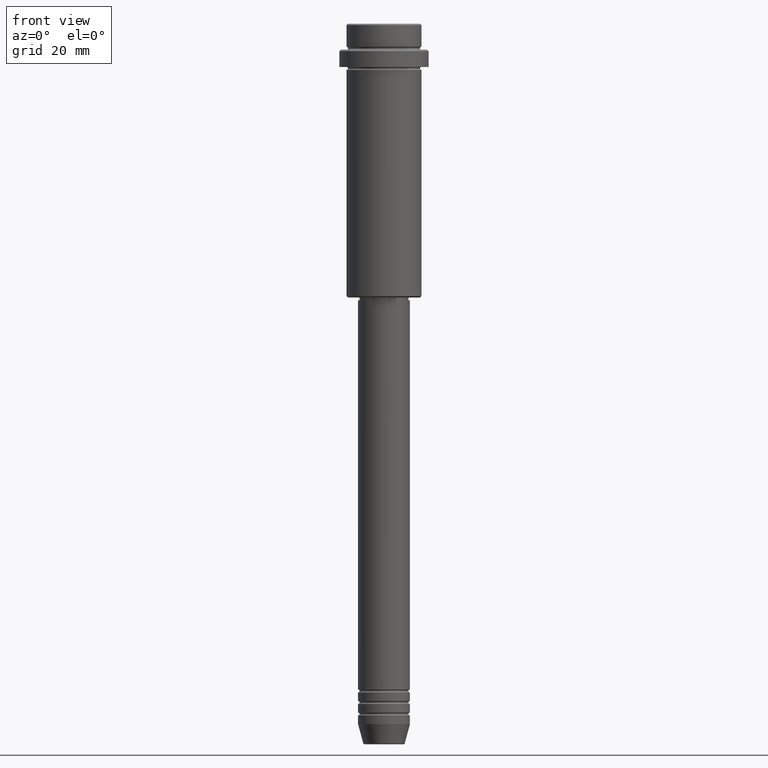
[diagram: clean part render]
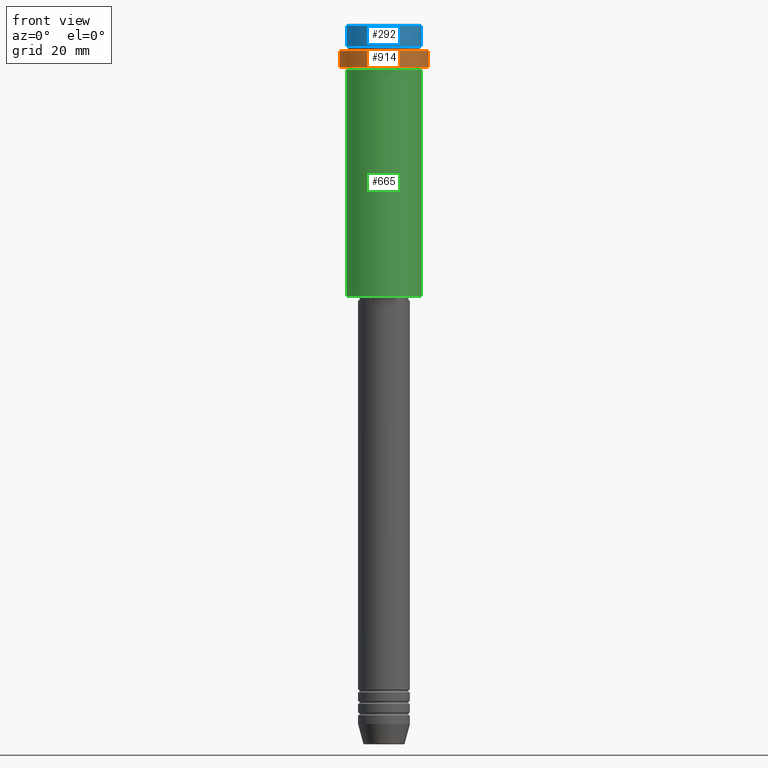
[diagram: same view with three faces highlighted in distinct colors, each labeled with its STEP entity id]
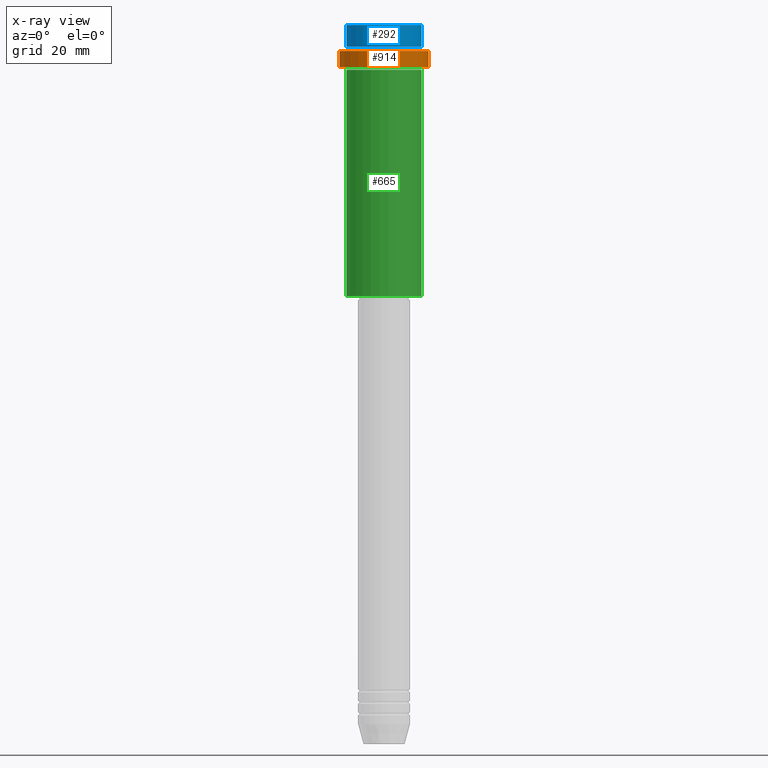
[diagram: x-ray of the same camera — body ghosted, the three highlighted faces saturated]
A machine part, front view with three faces highlighted in distinct colors.
The next image is the same camera in x-ray (body ghosted, the three faces saturated) — at least one of them is partly hidden behind the body in this view.
Their STEP definitions:

[orange] entity #914 — the highlighted cylindrical surface (partial cylindrical patch) has radius 15.5 mm, axis along (-0, -0, 1).
#8 = CIRCLE ( 'NONE', #446, 15.50000000000000000 ) ;
#42 = ORIENTED_EDGE ( 'NONE', *, *, #1090, .T. ) ;
#74 = EDGE_CURVE ( 'NONE', #997, #825, #168, .T. ) ;
#109 = DIRECTION ( 'NONE',  ( 0.000000000000000000, 0.000000000000000000, -1.000000000000000000 ) ) ;
#128 = CARTESIAN_POINT ( 'NONE',  ( 15.50000000000000000, 0.000000000000000000, -15.00000000000000178 ) ) ;
#130 = DIRECTION ( 'NONE',  ( -0.000000000000000000, -0.000000000000000000, 1.000000000000000000 ) ) ;
#168 = LINE ( 'NONE', #616, #846 ) ;
#245 = DIRECTION ( 'NONE',  ( 1.000000000000000000, 0.000000000000000000, 0.000000000000000000 ) ) ;
#308 = CIRCLE ( 'NONE', #1195, 15.50000000000000000 ) ;
#320 = DIRECTION ( 'NONE',  ( 1.000000000000000000, 0.000000000000000000, 0.000000000000000000 ) ) ;
#358 = CARTESIAN_POINT ( 'NONE',  ( 0.000000000000000000, 0.000000000000000000, -15.00000000000000178 ) ) ;
#368 = CYLINDRICAL_SURFACE ( 'NONE', #574, 15.50000000000000000 ) ;
#379 = DIRECTION ( 'NONE',  ( 1.000000000000000000, 0.000000000000000000, 0.000000000000000000 ) ) ;
#383 = EDGE_CURVE ( 'NONE', #997, #1270, #308, .T. ) ;
#446 = AXIS2_PLACEMENT_3D ( 'NONE', #991, #109, #320 ) ;
#498 = ORIENTED_EDGE ( 'NONE', *, *, #74, .F. ) ;
#548 = LINE ( 'NONE', #1086, #1237 ) ;
#574 = AXIS2_PLACEMENT_3D ( 'NONE', #680, #130, #379 ) ;
#600 = ORIENTED_EDGE ( 'NONE', *, *, #383, .T. ) ;
#616 = CARTESIAN_POINT ( 'NONE',  ( -15.50000000000000000, 1.898202538678397557E-15, 0.000000000000000000 ) ) ;
#643 = DIRECTION ( 'NONE',  ( -0.000000000000000000, -0.000000000000000000, 1.000000000000000000 ) ) ;
#680 = CARTESIAN_POINT ( 'NONE',  ( 0.000000000000000000, 0.000000000000000000, 0.000000000000000000 ) ) ;
#697 = ORIENTED_EDGE ( 'NONE', *, *, #786, .T. ) ;
#708 = FACE_OUTER_BOUND ( 'NONE', #820, .T. ) ;
#709 = DIRECTION ( 'NONE',  ( -0.000000000000000000, -0.000000000000000000, 1.000000000000000000 ) ) ;
#751 = DIRECTION ( 'NONE',  ( -0.000000000000000000, -0.000000000000000000, 1.000000000000000000 ) ) ;
#755 = VERTEX_POINT ( 'NONE', #1088 ) ;
#786 = EDGE_CURVE ( 'NONE', #755, #825, #8, .T. ) ;
#820 = EDGE_LOOP ( 'NONE', ( #498, #600, #42, #697 ) ) ;
#825 = VERTEX_POINT ( 'NONE', #1317 ) ;
#846 = VECTOR ( 'NONE', #709, 1000.000000000000000 ) ;
#914 = ADVANCED_FACE ( 'NONE', ( #708 ), #368, .T. ) ;
#991 = CARTESIAN_POINT ( 'NONE',  ( 0.000000000000000000, 0.000000000000000000, -9.499999999999957367 ) ) ;
#997 = VERTEX_POINT ( 'NONE', #1168 ) ;
#1086 = CARTESIAN_POINT ( 'NONE',  ( 15.50000000000000000, 0.000000000000000000, 0.000000000000000000 ) ) ;
#1088 = CARTESIAN_POINT ( 'NONE',  ( 15.50000000000000000, 0.000000000000000000, -9.499999999999957367 ) ) ;
#1090 = EDGE_CURVE ( 'NONE', #1270, #755, #548, .T. ) ;
#1168 = CARTESIAN_POINT ( 'NONE',  ( -15.50000000000000000, 1.898202538678397557E-15, -15.00000000000000178 ) ) ;
#1195 = AXIS2_PLACEMENT_3D ( 'NONE', #358, #643, #245 ) ;
#1237 = VECTOR ( 'NONE', #751, 1000.000000000000000 ) ;
#1270 = VERTEX_POINT ( 'NONE', #128 ) ;
#1317 = CARTESIAN_POINT ( 'NONE',  ( -15.50000000000000000, 1.898202538678397557E-15, -9.499999999999957367 ) ) ;

[blue] entity #292 — the highlighted cylindrical surface (partial cylindrical patch) has radius 13 mm, axis along (-0, -0, 1).
#7 = ORIENTED_EDGE ( 'NONE', *, *, #116, .T. ) ;
#12 = CARTESIAN_POINT ( 'NONE',  ( -12.99999999999999822, 1.592040838891558898E-15, -0.5000000000000037748 ) ) ;
#70 = CIRCLE ( 'NONE', #1057, 12.99999999999999822 ) ;
#85 = ORIENTED_EDGE ( 'NONE', *, *, #917, .T. ) ;
#95 = AXIS2_PLACEMENT_3D ( 'NONE', #1083, #316, #198 ) ;
#116 = EDGE_CURVE ( 'NONE', #1406, #733, #70, .T. ) ;
#134 = VECTOR ( 'NONE', #1129, 1000.000000000000000 ) ;
#198 = DIRECTION ( 'NONE',  ( 1.000000000000000000, 0.000000000000000000, 0.000000000000000000 ) ) ;
#230 = DIRECTION ( 'NONE',  ( -0.000000000000000000, -0.000000000000000000, 1.000000000000000000 ) ) ;
#254 = VERTEX_POINT ( 'NONE', #998 ) ;
#256 = CIRCLE ( 'NONE', #286, 12.99999999999999822 ) ;
#286 = AXIS2_PLACEMENT_3D ( 'NONE', #1334, #1141, #586 ) ;
#292 = ADVANCED_FACE ( 'NONE', ( #1188 ), #1277, .T. ) ;
#315 = ORIENTED_EDGE ( 'NONE', *, *, #815, .F. ) ;
#316 = DIRECTION ( 'NONE',  ( -0.000000000000000000, -0.000000000000000000, 1.000000000000000000 ) ) ;
#447 = EDGE_CURVE ( 'NONE', #254, #1314, #256, .T. ) ;
#586 = DIRECTION ( 'NONE',  ( 1.000000000000000000, 0.000000000000000000, 0.000000000000000000 ) ) ;
#625 = ORIENTED_EDGE ( 'NONE', *, *, #447, .T. ) ;
#648 = CARTESIAN_POINT ( 'NONE',  ( -12.99999999999999822, 1.592040838891558898E-15, 0.000000000000000000 ) ) ;
#689 = VECTOR ( 'NONE', #1204, 1000.000000000000000 ) ;
#699 = CARTESIAN_POINT ( 'NONE',  ( 12.99999999999999822, 0.000000000000000000, 0.000000000000000000 ) ) ;
#733 = VERTEX_POINT ( 'NONE', #1091 ) ;
#800 = LINE ( 'NONE', #699, #134 ) ;
#815 = EDGE_CURVE ( 'NONE', #1406, #1314, #1296, .T. ) ;
#900 = DIRECTION ( 'NONE',  ( 1.000000000000000000, 0.000000000000000000, 0.000000000000000000 ) ) ;
#917 = EDGE_CURVE ( 'NONE', #733, #254, #800, .T. ) ;
#998 = CARTESIAN_POINT ( 'NONE',  ( 12.99999999999999822, 0.000000000000000000, -0.5000000000000037748 ) ) ;
#1057 = AXIS2_PLACEMENT_3D ( 'NONE', #1326, #230, #900 ) ;
#1083 = CARTESIAN_POINT ( 'NONE',  ( 0.000000000000000000, 0.000000000000000000, 0.000000000000000000 ) ) ;
#1091 = CARTESIAN_POINT ( 'NONE',  ( 12.99999999999999822, 0.000000000000000000, -7.999999999999998224 ) ) ;
#1129 = DIRECTION ( 'NONE',  ( -0.000000000000000000, -0.000000000000000000, 1.000000000000000000 ) ) ;
#1141 = DIRECTION ( 'NONE',  ( 0.000000000000000000, 0.000000000000000000, -1.000000000000000000 ) ) ;
#1166 = EDGE_LOOP ( 'NONE', ( #315, #7, #85, #625 ) ) ;
#1188 = FACE_OUTER_BOUND ( 'NONE', #1166, .T. ) ;
#1204 = DIRECTION ( 'NONE',  ( -0.000000000000000000, -0.000000000000000000, 1.000000000000000000 ) ) ;
#1206 = CARTESIAN_POINT ( 'NONE',  ( -12.99999999999999822, 1.592040838891558898E-15, -7.999999999999998224 ) ) ;
#1277 = CYLINDRICAL_SURFACE ( 'NONE', #95, 12.99999999999999822 ) ;
#1296 = LINE ( 'NONE', #648, #689 ) ;
#1314 = VERTEX_POINT ( 'NONE', #12 ) ;
#1326 = CARTESIAN_POINT ( 'NONE',  ( 0.000000000000000000, 0.000000000000000000, -7.999999999999998224 ) ) ;
#1334 = CARTESIAN_POINT ( 'NONE',  ( 0.000000000000000000, 0.000000000000000000, -0.5000000000000037748 ) ) ;
#1406 = VERTEX_POINT ( 'NONE', #1206 ) ;

[green] entity #665 — the highlighted cylindrical surface (partial cylindrical patch) has radius 13 mm, axis along (-0, -0, 1).
#25 = AXIS2_PLACEMENT_3D ( 'NONE', #84, #533, #387 ) ;
#54 = VERTEX_POINT ( 'NONE', #960 ) ;
#84 = CARTESIAN_POINT ( 'NONE',  ( 0.000000000000000000, 0.000000000000000000, 0.000000000000000000 ) ) ;
#92 = CARTESIAN_POINT ( 'NONE',  ( 13.00000000000000000, 0.000000000000000000, -94.50000000000000000 ) ) ;
#140 = AXIS2_PLACEMENT_3D ( 'NONE', #169, #726, #954 ) ;
#142 = DIRECTION ( 'NONE',  ( -0.000000000000000000, -0.000000000000000000, 1.000000000000000000 ) ) ;
#169 = CARTESIAN_POINT ( 'NONE',  ( 0.000000000000000000, 0.000000000000000000, -16.00000000000000000 ) ) ;
#224 = EDGE_CURVE ( 'NONE', #821, #1252, #714, .T. ) ;
#273 = DIRECTION ( 'NONE',  ( -0.000000000000000000, -0.000000000000000000, 1.000000000000000000 ) ) ;
#282 = DIRECTION ( 'NONE',  ( -1.000000000000000000, 0.000000000000000000, 0.000000000000000000 ) ) ;
#387 = DIRECTION ( 'NONE',  ( 1.000000000000000000, 0.000000000000000000, 0.000000000000000000 ) ) ;
#390 = CARTESIAN_POINT ( 'NONE',  ( 0.000000000000000000, 0.000000000000000000, -94.50000000000000000 ) ) ;
#454 = CARTESIAN_POINT ( 'NONE',  ( -13.00000000000000000, 1.592040838891559095E-15, -94.50000000000000000 ) ) ;
#533 = DIRECTION ( 'NONE',  ( -0.000000000000000000, -0.000000000000000000, 1.000000000000000000 ) ) ;
#569 = LINE ( 'NONE', #1240, #601 ) ;
#601 = VECTOR ( 'NONE', #142, 1000.000000000000000 ) ;
#635 = EDGE_CURVE ( 'NONE', #54, #1252, #807, .T. ) ;
#665 = ADVANCED_FACE ( 'NONE', ( #1395 ), #1286, .T. ) ;
#695 = ORIENTED_EDGE ( 'NONE', *, *, #1413, .T. ) ;
#714 = LINE ( 'NONE', #1015, #1266 ) ;
#719 = AXIS2_PLACEMENT_3D ( 'NONE', #390, #273, #282 ) ;
#726 = DIRECTION ( 'NONE',  ( -0.000000000000000000, -0.000000000000000000, 1.000000000000000000 ) ) ;
#732 = ORIENTED_EDGE ( 'NONE', *, *, #224, .T. ) ;
#807 = CIRCLE ( 'NONE', #140, 13.00000000000000000 ) ;
#821 = VERTEX_POINT ( 'NONE', #92 ) ;
#877 = VERTEX_POINT ( 'NONE', #454 ) ;
#878 = EDGE_CURVE ( 'NONE', #877, #54, #569, .T. ) ;
#893 = CIRCLE ( 'NONE', #719, 13.00000000000000000 ) ;
#922 = ORIENTED_EDGE ( 'NONE', *, *, #878, .F. ) ;
#954 = DIRECTION ( 'NONE',  ( 1.000000000000000000, 0.000000000000000000, 0.000000000000000000 ) ) ;
#960 = CARTESIAN_POINT ( 'NONE',  ( -13.00000000000000000, 1.592040838891559095E-15, -16.00000000000000000 ) ) ;
#1015 = CARTESIAN_POINT ( 'NONE',  ( 13.00000000000000000, 0.000000000000000000, 0.000000000000000000 ) ) ;
#1127 = EDGE_LOOP ( 'NONE', ( #922, #695, #732, #1320 ) ) ;
#1231 = DIRECTION ( 'NONE',  ( -0.000000000000000000, -0.000000000000000000, 1.000000000000000000 ) ) ;
#1235 = CARTESIAN_POINT ( 'NONE',  ( 13.00000000000000000, 0.000000000000000000, -16.00000000000000000 ) ) ;
#1240 = CARTESIAN_POINT ( 'NONE',  ( -13.00000000000000000, 1.592040838891559095E-15, 0.000000000000000000 ) ) ;
#1252 = VERTEX_POINT ( 'NONE', #1235 ) ;
#1266 = VECTOR ( 'NONE', #1231, 1000.000000000000000 ) ;
#1286 = CYLINDRICAL_SURFACE ( 'NONE', #25, 13.00000000000000000 ) ;
#1320 = ORIENTED_EDGE ( 'NONE', *, *, #635, .F. ) ;
#1395 = FACE_OUTER_BOUND ( 'NONE', #1127, .T. ) ;
#1413 = EDGE_CURVE ( 'NONE', #877, #821, #893, .T. ) ;